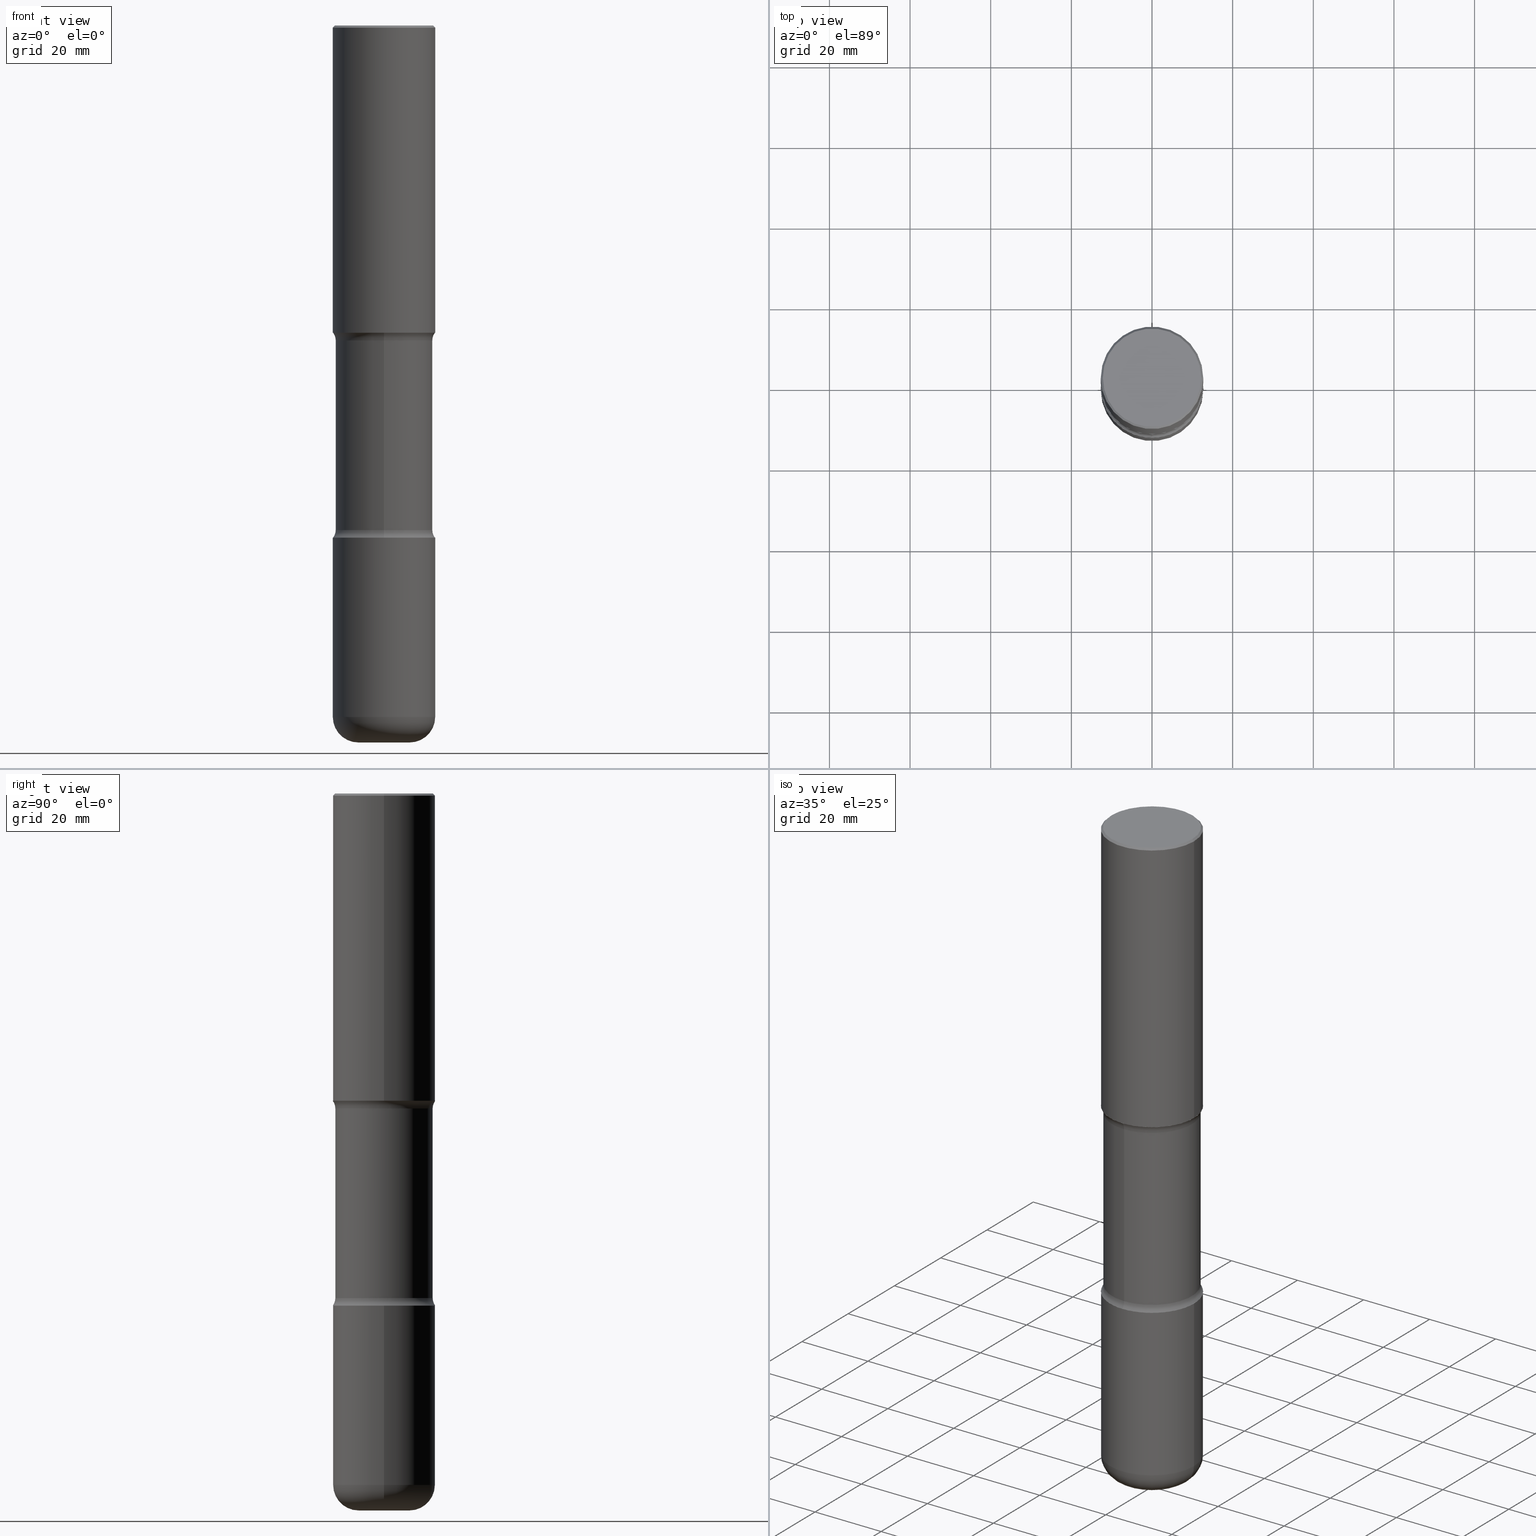
[diagram: canonical four-view strip — front | top / right | iso, engineering-drawing reading convention]
A machine part, canonical four-view strip (front | top / right | iso — engineering-drawing reading convention). The complete STEP part file that produces these views, byte-faithful:
ISO-10303-21;
HEADER;
FILE_DESCRIPTION (( 'STEP AP203' ),
    '1' );
FILE_NAME ('37985.STEP',
    '2024-03-02T02:08:15',
    ( '' ),
    ( '' ),
    'SwSTEP 2.0',
    'SolidWorks 2023',
    '' );
FILE_SCHEMA (( 'CONFIG_CONTROL_DESIGN' ));
ENDSEC;

DATA;
#1 = DIRECTION ( 'NONE',  ( 6.982962677686265133E-15, 1.000000000000000000, -3.419634877618474112E-15 ) ) ;
#2 = AXIS2_PLACEMENT_3D ( 'NONE', #445, #225, #535 ) ;
#3 = PRODUCT ( '37985', '37985', '', ( #203 ) ) ;
#4 = AXIS2_PLACEMENT_3D ( 'NONE', #435, #6, #389 ) ;
#5 = AXIS2_PLACEMENT_3D ( 'NONE', #357, #531, #313 ) ;
#6 = DIRECTION ( 'NONE',  ( -2.445468806185136597E-29, 3.491481338843145583E-15, 1.000000000000000000 ) ) ;
#7 = ADVANCED_FACE ( 'NONE', ( #24 ), #532, .T. ) ;
#8 = EDGE_CURVE ( 'NONE', #158, #272, #187, .T. ) ;
#9 = CARTESIAN_POINT ( 'NONE',  ( 1.711828164329595842E-28, -2.444036937190202499E-14, -7.000000000000001776 ) ) ;
#10 = DIRECTION ( 'NONE',  ( -2.445468806185136597E-29, 3.491481338843145583E-15, 1.000000000000000000 ) ) ;
#11 = AXIS2_PLACEMENT_3D ( 'NONE', #184, #261, #254 ) ;
#12 = CARTESIAN_POINT ( 'NONE',  ( 0.5000000000000002220, -2.094888803305886009E-14, -4.999999999999999112 ) ) ;
#13 = APPROVAL_ROLE ( '' ) ;
#14 = EDGE_CURVE ( 'NONE', #413, #312, #438, .T. ) ;
#15 = EDGE_LOOP ( 'NONE', ( #549, #362, #415, #322 ) ) ;
#16 = DIRECTION ( 'NONE',  ( 1.000000000000000000, -6.982962677686265133E-15, 4.883557194083112340E-29 ) ) ;
#17 = ORIENTED_EDGE ( 'NONE', *, *, #467, .F. ) ;
#18 = ORIENTED_EDGE ( 'NONE', *, *, #86, .F. ) ;
#19 = LINE ( 'NONE', #156, #88 ) ;
#20 = DIRECTION ( 'NONE',  ( 2.495638921910708014E-29, -3.419634877618474112E-15, -1.000000000000000000 ) ) ;
#21 = EDGE_LOOP ( 'NONE', ( #103, #503, #397, #328 ) ) ;
#22 = AXIS2_PLACEMENT_3D ( 'NONE', #478, #434, #311 ) ;
#23 = DIRECTION ( 'NONE',  ( 2.495638921910708014E-29, -3.419634877618474112E-15, -1.000000000000000000 ) ) ;
#24 = FACE_OUTER_BOUND ( 'NONE', #124, .T. ) ;
#25 = EDGE_LOOP ( 'NONE', ( #486, #129, #223, #439 ) ) ;
#26 = APPLICATION_PROTOCOL_DEFINITION ( 'international standard', 'config_control_design', 1994, #63 ) ;
#27 = DIRECTION ( 'NONE',  ( 2.445468806185136597E-29, -3.491481338843145583E-15, -1.000000000000000000 ) ) ;
#28 = EDGE_LOOP ( 'NONE', ( #41, #60, #373, #326 ) ) ;
#29 = DIRECTION ( 'NONE',  ( -1.000000000000000000, 6.982962677686266711E-15, 0.000000000000000000 ) ) ;
#30 = VERTEX_POINT ( 'NONE', #12 ) ;
#31 = TOROIDAL_SURFACE ( 'NONE', #418, 0.2500000000000004996, 0.2500000000000004996 ) ;
#32 = DIRECTION ( 'NONE',  ( 0.000000000000000000, 0.000000000000000000, 1.000000000000000000 ) ) ;
#33 = APPROVAL ( #75, 'UNSPECIFIED' ) ;
#34 = CARTESIAN_POINT ( 'NONE',  ( 1.222734403092568074E-28, -1.745740669421572673E-14, -4.999999999999999112 ) ) ;
#35 = ADVANCED_FACE ( 'NONE', ( #100 ), #193, .F. ) ;
#36 = DIRECTION ( 'NONE',  ( -2.445468806185136597E-29, 3.491481338843145583E-15, 1.000000000000000000 ) ) ;
#37 = CALENDAR_DATE ( 2024, 1, 3 ) ;
#38 = CARTESIAN_POINT ( 'NONE',  ( -3.430248998885697150E-15, -0.5000000000000112133, -2.999999999999997335 ) ) ;
#39 = CIRCLE ( 'NONE', #387, 0.2500000000000004996 ) ;
#40 = DIRECTION ( 'NONE',  ( 6.982962677686265922E-15, 1.000000000000000000, -2.300503573612011028E-15 ) ) ;
#41 = ORIENTED_EDGE ( 'NONE', *, *, #346, .F. ) ;
#42 = APPROVAL ( #255, 'UNSPECIFIED' ) ;
#43 = DIRECTION ( 'NONE',  ( 2.495638921910707734E-29, -3.419634877618474112E-15, -1.000000000000000000 ) ) ;
#44 = DIRECTION ( 'NONE',  ( 6.860497997771531562E-15, 1.000000000000000000, 0.000000000000000000 ) ) ;
#45 = CARTESIAN_POINT ( 'NONE',  ( 1.222734403092568074E-28, -1.745740669421572673E-14, -4.999999999999999112 ) ) ;
#46 = CIRCLE ( 'NONE', #518, 0.2500000000000004996 ) ;
#47 = EDGE_CURVE ( 'NONE', #492, #74, #64, .T. ) ;
#48 = FACE_OUTER_BOUND ( 'NONE', #150, .T. ) ;
#49 = EDGE_CURVE ( 'NONE', #131, #169, #139, .T. ) ;
#50 = CARTESIAN_POINT ( 'NONE',  ( -0.2500000000000004996, -2.133939894544624343E-14, -7.000000000000001776 ) ) ;
#51 = CARTESIAN_POINT ( 'NONE',  ( -4.116298798662799188E-15, -0.6000000000000174083, -4.924999999999996270 ) ) ;
#52 = VERTEX_POINT ( 'NONE', #157 ) ;
#53 = AXIS2_PLACEMENT_3D ( 'NONE', #455, #69, #271 ) ;
#54 = ORGANIZATION ( 'UNSPECIFIED', 'UNSPECIFIED', '' ) ;
#55 = CYLINDRICAL_SURFACE ( 'NONE', #371, 0.5000000000000001110 ) ;
#56 = EDGE_LOOP ( 'NONE', ( #546, #456 ) ) ;
#57 = ORIENTED_EDGE ( 'NONE', *, *, #428, .F. ) ;
#58 = DIRECTION ( 'NONE',  ( -2.445468806185136597E-29, 3.491481338843145583E-15, 1.000000000000000000 ) ) ;
#59 = DIRECTION ( 'NONE',  ( 1.000000000000000000, -6.982962677686265922E-15, 4.876176775795935793E-29 ) ) ;
#60 = ORIENTED_EDGE ( 'NONE', *, *, #507, .T. ) ;
#61 = DIRECTION ( 'NONE',  ( 6.860497997771532351E-15, 1.000000000000000000, 0.000000000000000000 ) ) ;
#62 = ORIENTED_EDGE ( 'NONE', *, *, #121, .F. ) ;
#63 = APPLICATION_CONTEXT ( 'configuration controlled 3d designs of mechanical parts and assemblies' ) ;
#64 = CIRCLE ( 'NONE', #78, 0.1250000000000002498 ) ;
#65 = VECTOR ( 'NONE', #419, 39.37007874015748143 ) ;
#66 = VERTEX_POINT ( 'NONE', #113 ) ;
#67 = CIRCLE ( 'NONE', #513, 0.5000000000000002220 ) ;
#68 = FACE_OUTER_BOUND ( 'NONE', #15, .T. ) ;
#69 = DIRECTION ( 'NONE',  ( 2.445468806185136597E-29, -3.491481338843145583E-15, -1.000000000000000000 ) ) ;
#70 = VERTEX_POINT ( 'NONE', #320 ) ;
#71 = APPROVAL_STATUS ( 'not_yet_approved' ) ;
#72 = ADVANCED_FACE ( 'NONE', ( #196 ), #278, .T. ) ;
#73 = DIRECTION ( 'NONE',  ( 6.982962677686266711E-15, 1.000000000000000000, -4.370956789862819572E-15 ) ) ;
#74 = VERTEX_POINT ( 'NONE', #449 ) ;
#75 = APPROVAL_STATUS ( 'not_yet_approved' ) ;
#76 = LINE ( 'NONE', #425, #393 ) ;
#77 = ORIENTED_EDGE ( 'NONE', *, *, #8, .F. ) ;
#78 = AXIS2_PLACEMENT_3D ( 'NONE', #442, #228, #358 ) ;
#79 = CIRCLE ( 'NONE', #554, 0.5000000000000002220 ) ;
#80 = AXIS2_PLACEMENT_3D ( 'NONE', #51, #491, #61 ) ;
#81 = CARTESIAN_POINT ( 'NONE',  ( -0.5000000000000002220, -1.695973918690297853E-14, -4.999999999999999112 ) ) ;
#82 = CALENDAR_DATE ( 2024, 1, 3 ) ;
#83 = DIRECTION ( 'NONE',  ( 2.495638921910708014E-29, -3.419634877618474112E-15, -1.000000000000000000 ) ) ;
#84 = MANIFOLD_SOLID_BREP ( 'Body-Move/Copy2[2]', #257 ) ;
#85 = CARTESIAN_POINT ( 'NONE',  ( 1.711828164329595842E-28, -2.444036937190202499E-14, -7.000000000000001776 ) ) ;
#86 = EDGE_CURVE ( 'NONE', #272, #158, #250, .T. ) ;
#87 = AXIS2_PLACEMENT_3D ( 'NONE', #477, #91, #1 ) ;
#88 = VECTOR ( 'NONE', #319, 39.37007874015748143 ) ;
#89 = CARTESIAN_POINT ( 'NONE',  ( 0.4999999999999999445, -3.500078625662628685E-15, -0.02000000000000013572 ) ) ;
#90 = EDGE_LOOP ( 'NONE', ( #500, #482, #233, #323 ) ) ;
#91 = DIRECTION ( 'NONE',  ( 2.495638921910708014E-29, -3.419634877618474112E-15, -1.000000000000000000 ) ) ;
#92 = DIRECTION ( 'NONE',  ( 6.982962677686265922E-15, 1.000000000000000000, -3.419634877618474112E-15 ) ) ;
#93 = ADVANCED_FACE ( 'NONE', ( #408 ), #269, .T. ) ;
#94 = DIRECTION ( 'NONE',  ( -6.982962677686266711E-15, -1.000000000000000000, 3.491481338843145583E-15 ) ) ;
#95 = AXIS2_PLACEMENT_3D ( 'NONE', #97, #399, #534 ) ;
#96 = APPLICATION_CONTEXT ( 'configuration controlled 3d designs of mechanical parts and assemblies' ) ;
#97 = CARTESIAN_POINT ( 'NONE',  ( -0.2500000000000004996, -2.179114219779098172E-14, -6.750000000000000888 ) ) ;
#98 = ADVANCED_FACE ( 'NONE', ( #236 ), #181, .T. ) ;
#99 = FACE_OUTER_BOUND ( 'NONE', #400, .T. ) ;
#100 = FACE_OUTER_BOUND ( 'NONE', #120, .T. ) ;
#101 = PRODUCT_DEFINITION ( 'UNKNOWN', '', #544, #179 ) ;
#102 = DIRECTION ( 'NONE',  ( -6.982962677686264344E-15, -1.000000000000000000, 0.000000000000000000 ) ) ;
#103 = ORIENTED_EDGE ( 'NONE', *, *, #428, .T. ) ;
#104 = CIRCLE ( 'NONE', #462, 0.1250000000000001110 ) ;
#105 = LOCAL_TIME ( 21, 8, 15.00000000000000000, #501 ) ;
#106 = DIRECTION ( 'NONE',  ( -2.445468806185136877E-29, 3.491481338843145188E-15, 1.000000000000000000 ) ) ;
#107 = DIRECTION ( 'NONE',  ( 2.438088387897960049E-29, -3.491481338843145188E-15, -1.000000000000000000 ) ) ;
#108 = EDGE_CURVE ( 'NONE', #165, #492, #309, .T. ) ;
#109 = DIRECTION ( 'NONE',  ( -1.000000000000000000, 6.982962677686265922E-15, -4.883557194083112340E-29 ) ) ;
#110 = DIRECTION ( 'NONE',  ( -2.445468806185136597E-29, 3.491481338843145583E-15, 1.000000000000000000 ) ) ;
#111 = ORIENTED_EDGE ( 'NONE', *, *, #195, .T. ) ;
#112 = LINE ( 'NONE', #448, #176 ) ;
#113 = CARTESIAN_POINT ( 'NONE',  ( -0.4799999999999998157, 3.386736898677838408E-15, 1.707404996037808406E-17 ) ) ;
#114 = AXIS2_PLACEMENT_3D ( 'NONE', #249, #135, #183 ) ;
#115 = VERTEX_POINT ( 'NONE', #81 ) ;
#116 = CARTESIAN_POINT ( 'NONE',  ( 3.316907271901051235E-15, 0.4749999999999892641, -3.075000000000001510 ) ) ;
#117 = ORIENTED_EDGE ( 'NONE', *, *, #8, .T. ) ;
#118 = DATE_AND_TIME ( #82, #105 ) ;
#119 = DIRECTION ( 'NONE',  ( 1.000000000000000000, -6.982962677686267499E-15, 0.000000000000000000 ) ) ;
#120 = EDGE_LOOP ( 'NONE', ( #331, #197 ) ) ;
#121 = EDGE_CURVE ( 'NONE', #492, #165, #511, .T. ) ;
#122 = PERSON_AND_ORGANIZATION ( #523, #54 ) ;
#123 = CARTESIAN_POINT ( 'NONE',  ( -0.5000000000000007772, -2.001478535839073126E-14, -6.750000000000000888 ) ) ;
#124 = EDGE_LOOP ( 'NONE', ( #57, #218 ) ) ;
#125 = VECTOR ( 'NONE', #522, 39.37007874015748143 ) ;
#126 = PERSON_AND_ORGANIZATION ( #523, #54 ) ;
#127 = CC_DESIGN_APPROVAL ( #42, ( #420 ) ) ;
#128 = DIRECTION ( 'NONE',  ( 2.495638921910708014E-29, -3.419634877618474112E-15, -1.000000000000000000 ) ) ;
#129 = ORIENTED_EDGE ( 'NONE', *, *, #411, .T. ) ;
#130 = FACE_OUTER_BOUND ( 'NONE', #222, .T. ) ;
#131 = VERTEX_POINT ( 'NONE', #242 ) ;
#132 = DIRECTION ( 'NONE',  ( -1.000000000000000000, 6.982962677686265922E-15, -4.876176775795935793E-29 ) ) ;
#133 = VECTOR ( 'NONE', #347, 39.37007874015748143 ) ;
#134 = CIRCLE ( 'NONE', #154, 0.5000000000000005551 ) ;
#135 = DIRECTION ( 'NONE',  ( 2.495638921910708014E-29, -3.419634877618474112E-15, -1.000000000000000000 ) ) ;
#136 = EDGE_CURVE ( 'NONE', #74, #409, #164, .T. ) ;
#137 = DIRECTION ( 'NONE',  ( 2.438088387897960049E-29, -3.491481338843145188E-15, -1.000000000000000000 ) ) ;
#138 = CARTESIAN_POINT ( 'NONE',  ( 0.4799999999999998157, -3.396558832296481310E-15, 1.707404996042524007E-17 ) ) ;
#139 = CIRCLE ( 'NONE', #386, 0.5000000000000004441 ) ;
#140 = FACE_OUTER_BOUND ( 'NONE', #552, .T. ) ;
#141 = TOROIDAL_SURFACE ( 'NONE', #114, 0.6000000000000001998, 0.1250000000000002498 ) ;
#142 = AXIS2_PLACEMENT_3D ( 'NONE', #402, #109, #102 ) ;
#143 = COORDINATED_UNIVERSAL_TIME_OFFSET ( 5, 0, .BEHIND. ) ;
#144 = ADVANCED_FACE ( 'NONE', ( #244 ), #258, .F. ) ;
#145 = CARTESIAN_POINT ( 'NONE',  ( 1.222734403092568074E-28, -1.745740669421572673E-14, -4.999999999999999112 ) ) ;
#146 = CC_DESIGN_PERSON_AND_ORGANIZATION_ASSIGNMENT ( #170, #333, ( #544 ) ) ;
#147 = ORIENTED_EDGE ( 'NONE', *, *, #108, .F. ) ;
#148 = CARTESIAN_POINT ( 'NONE',  ( 1.650691444174967427E-28, -2.356749903719123535E-14, -6.750000000000000888 ) ) ;
#149 = DIRECTION ( 'NONE',  ( -2.438088387897960049E-29, 3.491481338843145188E-15, 1.000000000000000000 ) ) ;
#150 = EDGE_LOOP ( 'NONE', ( #111, #237, #367, #201 ) ) ;
#151 = DIRECTION ( 'NONE',  ( 1.000000000000000000, -6.982962677686263555E-15, 0.000000000000000000 ) ) ;
#152 = ORIENTED_EDGE ( 'NONE', *, *, #47, .F. ) ;
#153 = CIRCLE ( 'NONE', #352, 0.4999999999999999445 ) ;
#154 = AXIS2_PLACEMENT_3D ( 'NONE', #148, #58, #494 ) ;
#155 = CC_DESIGN_DATE_AND_TIME_ASSIGNMENT ( #553, #368, ( #420 ) ) ;
#156 = CARTESIAN_POINT ( 'NONE',  ( 0.5000000000000001110, -3.491481338843134539E-15, 2.438088387897968457E-29 ) ) ;
#157 = CARTESIAN_POINT ( 'NONE',  ( -0.4999999999999999445, 3.421651712066269663E-15, -0.02000000000000013572 ) ) ;
#158 = VERTEX_POINT ( 'NONE', #116 ) ;
#159 = CARTESIAN_POINT ( 'NONE',  ( -0.5000000000000002220, -1.719423142852643572E-15, -2.999999999999999112 ) ) ;
#160 = ADVANCED_FACE ( 'NONE', ( #171 ), #422, .F. ) ;
#161 = ORIENTED_EDGE ( 'NONE', *, *, #234, .T. ) ;
#162 = APPROVAL_ROLE ( '' ) ;
#163 = ORIENTED_EDGE ( 'NONE', *, *, #185, .T. ) ;
#164 = CIRCLE ( 'NONE', #325, 0.4749999999999999778 ) ;
#165 = VERTEX_POINT ( 'NONE', #329 ) ;
#166 = LOCAL_TIME ( 21, 8, 15.00000000000000000, #374 ) ;
#167 = PERSON_AND_ORGANIZATION ( #523, #54 ) ;
#168 = LINE ( 'NONE', #337, #65 ) ;
#169 = VERTEX_POINT ( 'NONE', #38 ) ;
#170 = PERSON_AND_ORGANIZATION ( #523, #54 ) ;
#171 = FACE_OUTER_BOUND ( 'NONE', #275, .T. ) ;
#172 = ORIENTED_EDGE ( 'NONE', *, *, #314, .T. ) ;
#173 = CARTESIAN_POINT ( 'NONE',  ( 7.336406418555407548E-29, -1.047444401652943320E-14, -2.999999999999999112 ) ) ;
#174 = ORIENTED_EDGE ( 'NONE', *, *, #467, .T. ) ;
#175 = AXIS2_PLACEMENT_3D ( 'NONE', #441, #359, #437 ) ;
#176 = VECTOR ( 'NONE', #106, 39.37007874015748143 ) ;
#177 = DIRECTION ( 'NONE',  ( -0.7071067811865471286, 2.468850131082252722E-15, -0.7071067811865479058 ) ) ;
#178 = DIRECTION ( 'NONE',  ( -2.445468806185136597E-29, 3.491481338843145583E-15, 1.000000000000000000 ) ) ;
#179 = DESIGN_CONTEXT ( 'detailed design', #96, 'design' ) ;
#180 = DIRECTION ( 'NONE',  ( 1.000000000000000000, -6.982962677686265133E-15, 4.883557194083112340E-29 ) ) ;
#181 = CONICAL_SURFACE ( 'NONE', #215, 0.4999999999999999445, 0.7853981633974477239 ) ;
#182 = LOCAL_TIME ( 21, 8, 15.00000000000000000, #466 ) ;
#183 = DIRECTION ( 'NONE',  ( 6.982962677686265133E-15, 1.000000000000000000, -3.419634877618474112E-15 ) ) ;
#184 = CARTESIAN_POINT ( 'NONE',  ( -4.175405657340879278E-46, 5.961372681521788801E-32, 1.707404996040164512E-17 ) ) ;
#185 = EDGE_CURVE ( 'NONE', #158, #74, #76, .T. ) ;
#186 = FACE_OUTER_BOUND ( 'NONE', #21, .T. ) ;
#187 = CIRCLE ( 'NONE', #2, 0.4750000000000001443 ) ;
#188 = CARTESIAN_POINT ( 'NONE',  ( 1.650691444174967427E-28, -2.356749903719123535E-14, -6.750000000000000888 ) ) ;
#189 = TOROIDAL_SURFACE ( 'NONE', #87, 0.5999999999999999778, 0.1250000000000001110 ) ;
#190 = ORIENTED_EDGE ( 'NONE', *, *, #332, .F. ) ;
#191 = ORIENTED_EDGE ( 'NONE', *, *, #354, .F. ) ;
#192 = DIRECTION ( 'NONE',  ( 6.982962677686265133E-15, 1.000000000000000000, -3.419634877618474112E-15 ) ) ;
#193 = PLANE ( 'NONE',  #496 ) ;
#194 = ORIENTED_EDGE ( 'NONE', *, *, #49, .F. ) ;
#195 = EDGE_CURVE ( 'NONE', #70, #205, #369, .T. ) ;
#196 = FACE_OUTER_BOUND ( 'NONE', #28, .T. ) ;
#197 = ORIENTED_EDGE ( 'NONE', *, *, #475, .F. ) ;
#198 = CALENDAR_DATE ( 2024, 1, 3 ) ;
#199 = CARTESIAN_POINT ( 'NONE',  ( 7.424434616114947917E-29, -1.087289751662588659E-14, -3.075000000000000178 ) ) ;
#200 = AXIS2_PLACEMENT_3D ( 'NONE', #392, #94, #217 ) ;
#201 = ORIENTED_EDGE ( 'NONE', *, *, #510, .F. ) ;
#202 = TOROIDAL_SURFACE ( 'NONE', #221, 0.6000000000000001998, 0.1250000000000002498 ) ;
#203 = MECHANICAL_CONTEXT ( 'NONE', #63, 'mechanical' ) ;
#204 = CARTESIAN_POINT ( 'NONE',  ( 1.204017111178237438E-28, -1.720093407839433761E-14, -4.924999999999998046 ) ) ;
#205 = VERTEX_POINT ( 'NONE', #123 ) ;
#206 = EDGE_CURVE ( 'NONE', #272, #409, #168, .T. ) ;
#207 = ORIENTED_EDGE ( 'NONE', *, *, #283, .F. ) ;
#208 = ADVANCED_FACE ( 'NONE', ( #287 ), #293, .T. ) ;
#209 = CARTESIAN_POINT ( 'NONE',  ( 4.890937612370306439E-31, -6.982962677686338448E-17, -0.02000000000000013572 ) ) ;
#210 = ORIENTED_EDGE ( 'NONE', *, *, #253, .T. ) ;
#211 = CIRCLE ( 'NONE', #4, 0.4799999999999998157 ) ;
#212 = APPROVAL_PERSON_ORGANIZATION ( #122, #436, #162 ) ;
#213 = DIRECTION ( 'NONE',  ( -1.000000000000000000, 6.982962677686265922E-15, -4.876176775795935793E-29 ) ) ;
#214 = CARTESIAN_POINT ( 'NONE',  ( 0.2500000000000004996, -2.618611004132359483E-14, -7.000000000000001776 ) ) ;
#215 = AXIS2_PLACEMENT_3D ( 'NONE', #412, #27, #29 ) ;
#216 = LINE ( 'NONE', #304, #133 ) ;
#217 = DIRECTION ( 'NONE',  ( 1.000000000000000000, -6.982962677686264344E-15, 0.000000000000000000 ) ) ;
#218 = ORIENTED_EDGE ( 'NONE', *, *, #252, .F. ) ;
#219 = FACE_OUTER_BOUND ( 'NONE', #25, .T. ) ;
#220 = AXIS2_PLACEMENT_3D ( 'NONE', #209, #502, #512 ) ;
#221 = AXIS2_PLACEMENT_3D ( 'NONE', #315, #23, #192 ) ;
#222 = EDGE_LOOP ( 'NONE', ( #117, #285, #245, #542 ) ) ;
#223 = ORIENTED_EDGE ( 'NONE', *, *, #234, .F. ) ;
#224 = CARTESIAN_POINT ( 'NONE',  ( 0.5000000000000002220, -1.396592535537256813E-14, -2.999999999999999112 ) ) ;
#225 = DIRECTION ( 'NONE',  ( 2.495638921910708014E-29, -3.419634877618474112E-15, -1.000000000000000000 ) ) ;
#226 = EDGE_CURVE ( 'NONE', #506, #461, #79, .T. ) ;
#227 = DIRECTION ( 'NONE',  ( -2.445468806185136597E-29, 3.491481338843145583E-15, 1.000000000000000000 ) ) ;
#228 = DIRECTION ( 'NONE',  ( -1.000000000000000000, 6.982962677686265922E-15, -4.883557194083112340E-29 ) ) ;
#229 =( LENGTH_UNIT ( ) NAMED_UNIT ( * ) SI_UNIT ( $, .METRE. ) );
#230 = ORIENTED_EDGE ( 'NONE', *, *, #473, .T. ) ;
#231 = VECTOR ( 'NONE', #177, 39.37007874015748143 ) ;
#232 = CIRCLE ( 'NONE', #301, 0.5000000000000002220 ) ;
#233 = ORIENTED_EDGE ( 'NONE', *, *, #423, .T. ) ;
#234 = EDGE_CURVE ( 'NONE', #312, #52, #282, .T. ) ;
#235 = DIRECTION ( 'NONE',  ( 1.000000000000000000, -6.982962677686267499E-15, 4.876176775795935793E-29 ) ) ;
#236 = FACE_OUTER_BOUND ( 'NONE', #450, .T. ) ;
#237 = ORIENTED_EDGE ( 'NONE', *, *, #346, .T. ) ;
#238 = COORDINATED_UNIVERSAL_TIME_OFFSET ( 5, 0, .BEHIND. ) ;
#239 = CARTESIAN_POINT ( 'NONE',  ( 1.222734403092568074E-28, -1.745740669421572673E-14, -4.999999999999999112 ) ) ;
#240 = ORIENTED_EDGE ( 'NONE', *, *, #108, .T. ) ;
#241 =( NAMED_UNIT ( * ) SI_UNIT ( $, .STERADIAN. ) SOLID_ANGLE_UNIT ( ) );
#242 = CARTESIAN_POINT ( 'NONE',  ( 3.491481338843209480E-15, 0.4999999999999900080, -3.000000000000000888 ) ) ;
#243 = CC_DESIGN_PERSON_AND_ORGANIZATION_ASSIGNMENT ( #504, #295, ( #420 ) ) ;
#244 = FACE_OUTER_BOUND ( 'NONE', #465, .T. ) ;
#245 = ORIENTED_EDGE ( 'NONE', *, *, #136, .F. ) ;
#246 = SECURITY_CLASSIFICATION_LEVEL ( 'unclassified' ) ;
#247 = LINE ( 'NONE', #557, #231 ) ;
#248 = DIRECTION ( 'NONE',  ( 1.000000000000000000, 0.000000000000000000, 0.000000000000000000 ) ) ;
#249 = CARTESIAN_POINT ( 'NONE',  ( 1.204393387046179415E-28, -1.719554559380248700E-14, -4.924999999999998046 ) ) ;
#250 = CIRCLE ( 'NONE', #472, 0.4750000000000001443 ) ;
#251 = CIRCLE ( 'NONE', #11, 0.4799999999999998157 ) ;
#252 = EDGE_CURVE ( 'NONE', #318, #351, #39, .T. ) ;
#253 = EDGE_CURVE ( 'NONE', #52, #312, #153, .T. ) ;
#254 = DIRECTION ( 'NONE',  ( 1.000000000000000000, -6.982962677686266711E-15, 4.876431871984415397E-29 ) ) ;
#255 = APPROVAL_STATUS ( 'not_yet_approved' ) ;
#256 = CYLINDRICAL_SURFACE ( 'NONE', #343, 0.5000000000000004441 ) ;
#257 = CLOSED_SHELL ( 'NONE', ( #414, #93, #98, #160, #35, #484 ) ) ;
#258 = TOROIDAL_SURFACE ( 'NONE', #533, 0.5999999999999999778, 0.1250000000000001110 ) ;
#259 = MANIFOLD_SOLID_BREP ( 'Body-Move/Copy2[4]', #509 ) ;
#260 = CC_DESIGN_APPROVAL ( #33, ( #544 ) ) ;
#261 = DIRECTION ( 'NONE',  ( -2.445468806185136597E-29, 3.491481338843145583E-15, 1.000000000000000000 ) ) ;
#262 = CC_DESIGN_PERSON_AND_ORGANIZATION_ASSIGNMENT ( #126, #547, ( #544 ) ) ;
#263 = CARTESIAN_POINT ( 'NONE',  ( 7.336406418555407548E-29, -1.047444401652943320E-14, -2.999999999999999112 ) ) ;
#264 = FACE_OUTER_BOUND ( 'NONE', #443, .T. ) ;
#265 = CARTESIAN_POINT ( 'NONE',  ( -4.697839742842598686E-28, -1.162304619590211429E-13, -7.000000000000000888 ) ) ;
#266 = ORIENTED_EDGE ( 'NONE', *, *, #332, .T. ) ;
#267 = AXIS2_PLACEMENT_3D ( 'NONE', #265, #107, #274 ) ;
#268 = DIRECTION ( 'NONE',  ( -2.445468806185136597E-29, 3.491481338843145583E-15, 1.000000000000000000 ) ) ;
#269 = CONICAL_SURFACE ( 'NONE', #53, 0.4999999999999999445, 0.7853981633974477239 ) ;
#270 = APPROVAL_PERSON_ORGANIZATION ( #289, #33, #457 ) ;
#271 = DIRECTION ( 'NONE',  ( -1.000000000000000000, 6.982962677686266711E-15, 0.000000000000000000 ) ) ;
#272 = VERTEX_POINT ( 'NONE', #426 ) ;
#273 = CARTESIAN_POINT ( 'NONE',  ( 7.336406418555407548E-29, -1.047444401652943320E-14, -2.999999999999999112 ) ) ;
#274 = DIRECTION ( 'NONE',  ( -1.000000000000000000, 6.982962677686265922E-15, -4.876176775795935793E-29 ) ) ;
#275 = EDGE_LOOP ( 'NONE', ( #266, #172 ) ) ;
#276 = ADVANCED_BREP_SHAPE_REPRESENTATION ( '37985', ( #454, #84, #259, #480 ), #344 ) ;
#277 = DIRECTION ( 'NONE',  ( -2.445468806185136597E-29, 3.491481338843145583E-15, 1.000000000000000000 ) ) ;
#278 = CYLINDRICAL_SURFACE ( 'NONE', #451, 0.5000000000000004441 ) ;
#279 = EDGE_CURVE ( 'NONE', #115, #30, #308, .T. ) ;
#280 = ORIENTED_EDGE ( 'NONE', *, *, #314, .F. ) ;
#281 = LENGTH_MEASURE_WITH_UNIT ( LENGTH_MEASURE( 0.02539999999999999897 ), #229 );
#282 = CIRCLE ( 'NONE', #220, 0.4999999999999999445 ) ;
#283 = EDGE_CURVE ( 'NONE', #66, #52, #247, .T. ) ;
#284 = DIRECTION ( 'NONE',  ( 6.982962677686265133E-15, 1.000000000000000000, -3.450755360418015555E-15 ) ) ;
#285 = ORIENTED_EDGE ( 'NONE', *, *, #206, .T. ) ;
#286 = CALENDAR_DATE ( 2024, 1, 3 ) ;
#287 = FACE_OUTER_BOUND ( 'NONE', #398, .T. ) ;
#288 = EDGE_LOOP ( 'NONE', ( #194, #17 ) ) ;
#289 = PERSON_AND_ORGANIZATION ( #523, #54 ) ;
#290 = DIRECTION ( 'NONE',  ( 6.982962677686266711E-15, 1.000000000000000000, -4.370956789862819572E-15 ) ) ;
#291 = ORIENTED_EDGE ( 'NONE', *, *, #556, .T. ) ;
#292 = DATE_TIME_ROLE ( 'creation_date' ) ;
#293 = CYLINDRICAL_SURFACE ( 'NONE', #479, 0.4750000000000000333 ) ;
#294 = CIRCLE ( 'NONE', #200, 0.2500000000000004996 ) ;
#295 = PERSON_AND_ORGANIZATION_ROLE ( 'classification_officer' ) ;
#296 = CARTESIAN_POINT ( 'NONE',  ( 1.222734403092568074E-28, -1.745740669421572673E-14, -4.999999999999999112 ) ) ;
#297 = DIRECTION ( 'NONE',  ( 2.495638921910708014E-29, -3.419634877618474112E-15, -1.000000000000000000 ) ) ;
#298 = ADVANCED_FACE ( 'NONE', ( #340 ), #141, .F. ) ;
#299 = CARTESIAN_POINT ( 'NONE',  ( 1.650691444174967427E-28, -2.356749903719123535E-14, -6.750000000000000888 ) ) ;
#300 = AXIS2_PLACEMENT_3D ( 'NONE', #263, #43, #92 ) ;
#301 = AXIS2_PLACEMENT_3D ( 'NONE', #145, #485, #151 ) ;
#302 = DIRECTION ( 'NONE',  ( 2.495638921910708014E-29, -3.419634877618474112E-15, -1.000000000000000000 ) ) ;
#303 = PLANE ( 'NONE',  #300 ) ;
#304 = CARTESIAN_POINT ( 'NONE',  ( -0.5000000000000001110, 3.552713678800501718E-15, -2.459467545127453732E-29 ) ) ;
#305 = ADVANCED_FACE ( 'NONE', ( #130 ), #349, .T. ) ;
#306 = SHAPE_DEFINITION_REPRESENTATION ( #476, #276 ) ;
#307 = VECTOR ( 'NONE', #364, 39.37007874015748143 ) ;
#308 = CIRCLE ( 'NONE', #433, 0.5000000000000002220 ) ;
#309 = CIRCLE ( 'NONE', #487, 0.5000000000000002220 ) ;
#310 = LOCAL_TIME ( 21, 8, 15.00000000000000000, #143 ) ;
#311 = DIRECTION ( 'NONE',  ( 1.000000000000000000, -6.982962677686267499E-15, 4.876176775795935793E-29 ) ) ;
#312 = VERTEX_POINT ( 'NONE', #89 ) ;
#313 = DIRECTION ( 'NONE',  ( -6.982962677686265922E-15, -1.000000000000000000, 3.419634877618474112E-15 ) ) ;
#314 = EDGE_CURVE ( 'NONE', #413, #66, #211, .T. ) ;
#315 = CARTESIAN_POINT ( 'NONE',  ( 1.204393387046179415E-28, -1.719554559380248700E-14, -4.924999999999998046 ) ) ;
#316 = DIRECTION ( 'NONE',  ( 2.495638921910708014E-29, -3.419634877618474112E-15, -1.000000000000000000 ) ) ;
#317 = DIRECTION ( 'NONE',  ( 2.495638921910708014E-29, -3.419634877618474112E-15, -1.000000000000000000 ) ) ;
#318 = VERTEX_POINT ( 'NONE', #50 ) ;
#319 = DIRECTION ( 'NONE',  ( -2.445468806185136877E-29, 3.491481338843145188E-15, 1.000000000000000000 ) ) ;
#320 = CARTESIAN_POINT ( 'NONE',  ( 0.5000000000000007772, -2.705898037603436870E-14, -6.750000000000000888 ) ) ;
#321 = DIRECTION ( 'NONE',  ( 1.000000000000000000, -6.982962677686267499E-15, 0.000000000000000000 ) ) ;
#322 = ORIENTED_EDGE ( 'NONE', *, *, #253, .F. ) ;
#323 = ORIENTED_EDGE ( 'NONE', *, *, #507, .F. ) ;
#324 = PERSON_AND_ORGANIZATION ( #523, #54 ) ;
#325 = AXIS2_PLACEMENT_3D ( 'NONE', #204, #382, #376 ) ;
#326 = ORIENTED_EDGE ( 'NONE', *, *, #279, .F. ) ;
#327 = TOROIDAL_SURFACE ( 'NONE', #388, 0.2500000000000004996, 0.2500000000000004996 ) ;
#328 = ORIENTED_EDGE ( 'NONE', *, *, #423, .F. ) ;
#329 = CARTESIAN_POINT ( 'NONE',  ( -3.430248998885645480E-15, -0.5000000000000177636, -4.999999999999997335 ) ) ;
#330 = ADVANCED_FACE ( 'NONE', ( #140 ), #189, .F. ) ;
#331 = ORIENTED_EDGE ( 'NONE', *, *, #226, .F. ) ;
#332 = EDGE_CURVE ( 'NONE', #66, #413, #251, .T. ) ;
#333 = PERSON_AND_ORGANIZATION_ROLE ( 'design_supplier' ) ;
#334 = DIRECTION ( 'NONE',  ( 2.495638921910708014E-29, -3.419634877618474112E-15, -1.000000000000000000 ) ) ;
#335 = ORIENTED_EDGE ( 'NONE', *, *, #136, .T. ) ;
#336 = CARTESIAN_POINT ( 'NONE',  ( 0.000000000000000000, 0.000000000000000000, 0.000000000000000000 ) ) ;
#337 = CARTESIAN_POINT ( 'NONE',  ( -3.258736548941304889E-15, -0.4750000000000243472, -6.999999999999997335 ) ) ;
#338 = CIRCLE ( 'NONE', #95, 0.2500000000000004996 ) ;
#339 = ORIENTED_EDGE ( 'NONE', *, *, #283, .T. ) ;
#340 = FACE_OUTER_BOUND ( 'NONE', #401, .T. ) ;
#341 = CYLINDRICAL_SURFACE ( 'NONE', #22, 0.5000000000000001110 ) ;
#342 = CARTESIAN_POINT ( 'NONE',  ( 1.721862187474709565E-28, -2.429667644945267101E-14, -6.999999999999998224 ) ) ;
#343 = AXIS2_PLACEMENT_3D ( 'NONE', #560, #481, #390 ) ;
#344 =( GEOMETRIC_REPRESENTATION_CONTEXT ( 3 ) GLOBAL_UNCERTAINTY_ASSIGNED_CONTEXT ( ( #383 ) ) GLOBAL_UNIT_ASSIGNED_CONTEXT ( ( #483, #353, #241 ) ) REPRESENTATION_CONTEXT ( 'NONE', 'WORKASPACE' ) );
#345 = PLANE ( 'NONE',  #543 ) ;
#346 = EDGE_CURVE ( 'NONE', #205, #115, #515, .T. ) ;
#347 = DIRECTION ( 'NONE',  ( -2.445468806185136877E-29, 3.491481338843145188E-15, 1.000000000000000000 ) ) ;
#348 = ORIENTED_EDGE ( 'NONE', *, *, #519, .T. ) ;
#349 = CYLINDRICAL_SURFACE ( 'NONE', #555, 0.4750000000000000333 ) ;
#350 = CALENDAR_DATE ( 2024, 1, 3 ) ;
#351 = VERTEX_POINT ( 'NONE', #214 ) ;
#352 = AXIS2_PLACEMENT_3D ( 'NONE', #559, #36, #551 ) ;
#353 =( NAMED_UNIT ( * ) PLANE_ANGLE_UNIT ( ) SI_UNIT ( $, .RADIAN. ) );
#354 = EDGE_CURVE ( 'NONE', #272, #169, #104, .T. ) ;
#355 = ORIENTED_EDGE ( 'NONE', *, *, #354, .T. ) ;
#356 = ORIENTED_EDGE ( 'NONE', *, *, #556, .F. ) ;
#357 = CARTESIAN_POINT ( 'NONE',  ( 1.222734403092568074E-28, -1.745740669421572673E-14, -4.999999999999999112 ) ) ;
#358 = DIRECTION ( 'NONE',  ( -6.982962677686264344E-15, -1.000000000000000000, 0.000000000000000000 ) ) ;
#359 = DIRECTION ( 'NONE',  ( 2.495638921910708014E-29, -3.419634877618474112E-15, -1.000000000000000000 ) ) ;
#360 = AXIS2_PLACEMENT_3D ( 'NONE', #460, #505, #213 ) ;
#361 = CARTESIAN_POINT ( 'NONE',  ( 0.4999999999999999445, -3.500078625662628685E-15, -0.02000000000000013572 ) ) ;
#362 = ORIENTED_EDGE ( 'NONE', *, *, #475, .T. ) ;
#363 = CC_DESIGN_PERSON_AND_ORGANIZATION_ASSIGNMENT ( #324, #508, ( #101 ) ) ;
#364 = DIRECTION ( 'NONE',  ( 0.7071067811865471286, -7.319954787623254468E-15, -0.7071067811865479058 ) ) ;
#365 = CARTESIAN_POINT ( 'NONE',  ( 0.000000000000000000, 0.000000000000000000, 0.000000000000000000 ) ) ;
#366 = ADVANCED_FACE ( 'NONE', ( #431 ), #345, .F. ) ;
#367 = ORIENTED_EDGE ( 'NONE', *, *, #539, .F. ) ;
#368 = DATE_TIME_ROLE ( 'classification_date' ) ;
#369 = CIRCLE ( 'NONE', #497, 0.5000000000000005551 ) ;
#370 = CARTESIAN_POINT ( 'NONE',  ( 1.650691444174967427E-28, -2.356749903719123535E-14, -6.750000000000000888 ) ) ;
#371 = AXIS2_PLACEMENT_3D ( 'NONE', #444, #227, #235 ) ;
#372 = ADVANCED_FACE ( 'NONE', ( #471 ), #303, .F. ) ;
#373 = ORIENTED_EDGE ( 'NONE', *, *, #510, .T. ) ;
#374 = COORDINATED_UNIVERSAL_TIME_OFFSET ( 5, 0, .BEHIND. ) ;
#375 = ADVANCED_FACE ( 'NONE', ( #48 ), #256, .T. ) ;
#376 = DIRECTION ( 'NONE',  ( 6.982962677686265133E-15, 1.000000000000000000, -2.300503573612011422E-15 ) ) ;
#377 = DIRECTION ( 'NONE',  ( -2.445468806185136597E-29, 3.491481338843145583E-15, 1.000000000000000000 ) ) ;
#378 = ORIENTED_EDGE ( 'NONE', *, *, #473, .F. ) ;
#379 = PERSON_AND_ORGANIZATION_ROLE ( 'design_owner' ) ;
#380 = DIRECTION ( 'NONE',  ( -2.445468806185136597E-29, 3.491481338843145583E-15, 1.000000000000000000 ) ) ;
#381 = AXIS2_PLACEMENT_3D ( 'NONE', #239, #297, #290 ) ;
#382 = DIRECTION ( 'NONE',  ( 2.495638921910708014E-29, -3.419634877618474112E-15, -1.000000000000000000 ) ) ;
#383 = UNCERTAINTY_MEASURE_WITH_UNIT (LENGTH_MEASURE( 1.000000000000000082E-05 ), #483, 'distance_accuracy_value', 'NONE');
#384 = DIRECTION ( 'NONE',  ( -2.445468806185136597E-29, 3.491481338843145583E-15, 1.000000000000000000 ) ) ;
#385 = DIRECTION ( 'NONE',  ( 1.000000000000000000, -6.860497997771530774E-15, 4.841678745011831520E-29 ) ) ;
#386 = AXIS2_PLACEMENT_3D ( 'NONE', #403, #20, #495 ) ;
#387 = AXIS2_PLACEMENT_3D ( 'NONE', #85, #377, #463 ) ;
#388 = AXIS2_PLACEMENT_3D ( 'NONE', #188, #268, #16 ) ;
#389 = DIRECTION ( 'NONE',  ( 1.000000000000000000, -6.982962677686266711E-15, 4.876431871984415397E-29 ) ) ;
#390 = DIRECTION ( 'NONE',  ( 1.000000000000000000, -6.982962677686266711E-15, 4.876176775795935232E-29 ) ) ;
#391 = ORIENTED_EDGE ( 'NONE', *, *, #47, .T. ) ;
#392 = CARTESIAN_POINT ( 'NONE',  ( 0.2500000000000004996, -2.531323970661280518E-14, -6.750000000000000888 ) ) ;
#393 = VECTOR ( 'NONE', #83, 39.37007874015748143 ) ;
#394 = PRODUCT_RELATED_PRODUCT_CATEGORY ( 'detail', '', ( #3 ) ) ;
#395 = APPROVAL_PERSON_ORGANIZATION ( #521, #42, #13 ) ;
#396 = CARTESIAN_POINT ( 'NONE',  ( 1.204017111178237438E-28, -1.720093407839433761E-14, -4.924999999999998046 ) ) ;
#397 = ORIENTED_EDGE ( 'NONE', *, *, #195, .F. ) ;
#398 = EDGE_LOOP ( 'NONE', ( #447, #514, #163, #378 ) ) ;
#399 = DIRECTION ( 'NONE',  ( 7.105427357601001859E-15, 1.000000000000000000, -3.491481338843145583E-15 ) ) ;
#400 = EDGE_LOOP ( 'NONE', ( #404, #240 ) ) ;
#401 = EDGE_LOOP ( 'NONE', ( #147, #291, #230, #152 ) ) ;
#402 = CARTESIAN_POINT ( 'NONE',  ( 4.189777606611833390E-15, 0.5999999999999890976, -3.075000000000002398 ) ) ;
#403 = CARTESIAN_POINT ( 'NONE',  ( 7.236066187104263592E-29, -1.061813693897877772E-14, -2.999999999999999112 ) ) ;
#404 = ORIENTED_EDGE ( 'NONE', *, *, #121, .T. ) ;
#405 = CARTESIAN_POINT ( 'NONE',  ( 3.491481338843257601E-15, 0.4999999999999828471, -5.000000000000000888 ) ) ;
#406 = CIRCLE ( 'NONE', #175, 0.5000000000000004441 ) ;
#407 = CIRCLE ( 'NONE', #440, 0.4749999999999999778 ) ;
#408 = FACE_OUTER_BOUND ( 'NONE', #490, .T. ) ;
#409 = VERTEX_POINT ( 'NONE', #525 ) ;
#410 = PLANE ( 'NONE',  #5 ) ;
#411 = EDGE_CURVE ( 'NONE', #461, #52, #216, .T. ) ;
#412 = CARTESIAN_POINT ( 'NONE',  ( 4.890937612370306439E-31, -6.982962677686338448E-17, -0.02000000000000013572 ) ) ;
#413 = VERTEX_POINT ( 'NONE', #138 ) ;
#414 = ADVANCED_FACE ( 'NONE', ( #219 ), #341, .T. ) ;
#415 = ORIENTED_EDGE ( 'NONE', *, *, #550, .T. ) ;
#416 = CC_DESIGN_DATE_AND_TIME_ASSIGNMENT ( #498, #292, ( #101 ) ) ;
#417 = APPROVAL_DATE_TIME ( #118, #436 ) ;
#418 = AXIS2_PLACEMENT_3D ( 'NONE', #299, #384, #180 ) ;
#419 = DIRECTION ( 'NONE',  ( 2.495638921910708014E-29, -3.419634877618474112E-15, -1.000000000000000000 ) ) ;
#420 = SECURITY_CLASSIFICATION ( '', '', #246 ) ;
#421 = APPROVAL_DATE_TIME ( #424, #33 ) ;
#422 = PLANE ( 'NONE',  #360 ) ;
#423 = EDGE_CURVE ( 'NONE', #351, #70, #294, .T. ) ;
#424 = DATE_AND_TIME ( #198, #166 ) ;
#425 = CARTESIAN_POINT ( 'NONE',  ( 3.316907271901148659E-15, 0.4749999999999757194, -7.000000000000000000 ) ) ;
#426 = CARTESIAN_POINT ( 'NONE',  ( -3.344492773913550718E-15, -0.4750000000000109690, -3.074999999999998401 ) ) ;
#427 = CARTESIAN_POINT ( 'NONE',  ( -0.5000000000000004441, 3.552713678800504085E-15, -2.459467545127455133E-29 ) ) ;
#428 = EDGE_CURVE ( 'NONE', #351, #318, #46, .T. ) ;
#429 = CARTESIAN_POINT ( 'NONE',  ( -4.116298798662844153E-15, -0.6000000000000108580, -3.074999999999998401 ) ) ;
#430 = ADVANCED_FACE ( 'NONE', ( #186 ), #31, .T. ) ;
#431 = FACE_OUTER_BOUND ( 'NONE', #56, .T. ) ;
#432 = CLOSED_SHELL ( 'NONE', ( #375, #430, #7, #470, #72, #366 ) ) ;
#433 = AXIS2_PLACEMENT_3D ( 'NONE', #296, #380, #469 ) ;
#434 = DIRECTION ( 'NONE',  ( -2.445468806185136597E-29, 3.491481338843145583E-15, 1.000000000000000000 ) ) ;
#435 = CARTESIAN_POINT ( 'NONE',  ( -4.175405657340879278E-46, 5.961372681521788801E-32, 1.707404996040164512E-17 ) ) ;
#436 = APPROVAL ( #71, 'UNSPECIFIED' ) ;
#437 = DIRECTION ( 'NONE',  ( 6.982962677686265133E-15, 1.000000000000000000, -3.278217592397113101E-15 ) ) ;
#438 = LINE ( 'NONE', #361, #307 ) ;
#439 = ORIENTED_EDGE ( 'NONE', *, *, #550, .F. ) ;
#440 = AXIS2_PLACEMENT_3D ( 'NONE', #396, #317, #489 ) ;
#441 = CARTESIAN_POINT ( 'NONE',  ( 7.236066187104263592E-29, -1.061813693897877772E-14, -2.999999999999999112 ) ) ;
#442 = CARTESIAN_POINT ( 'NONE',  ( 4.189777606611881511E-15, 0.5999999999999829914, -4.925000000000000711 ) ) ;
#443 = EDGE_LOOP ( 'NONE', ( #356, #62, #391, #335 ) ) ;
#444 = CARTESIAN_POINT ( 'NONE',  ( 0.000000000000000000, 0.000000000000000000, 0.000000000000000000 ) ) ;
#445 = CARTESIAN_POINT ( 'NONE',  ( 7.423239106247569958E-29, -1.087460955480016368E-14, -3.074999999999999734 ) ) ;
#446 = EDGE_CURVE ( 'NONE', #318, #205, #338, .T. ) ;
#447 = ORIENTED_EDGE ( 'NONE', *, *, #206, .F. ) ;
#448 = CARTESIAN_POINT ( 'NONE',  ( 0.5000000000000004441, -3.491481338843136511E-15, 2.438088387897969858E-29 ) ) ;
#449 = CARTESIAN_POINT ( 'NONE',  ( 3.316907271901096594E-15, 0.4749999999999827693, -4.924999999999999822 ) ) ;
#450 = EDGE_LOOP ( 'NONE', ( #459, #190, #339, #210 ) ) ;
#451 = AXIS2_PLACEMENT_3D ( 'NONE', #365, #110, #537 ) ;
#452 = FACE_OUTER_BOUND ( 'NONE', #90, .T. ) ;
#453 = CIRCLE ( 'NONE', #142, 0.1250000000000001110 ) ;
#454 = MANIFOLD_SOLID_BREP ( 'Body-Move/Copy2[1]', #432 ) ;
#455 = CARTESIAN_POINT ( 'NONE',  ( 4.890937612370306439E-31, -6.982962677686338448E-17, -0.02000000000000013572 ) ) ;
#456 = ORIENTED_EDGE ( 'NONE', *, *, #279, .T. ) ;
#457 = APPROVAL_ROLE ( '' ) ;
#458 = CARTESIAN_POINT ( 'NONE',  ( 1.721862187474709565E-28, -2.429667644945267101E-14, -6.999999999999998224 ) ) ;
#459 = ORIENTED_EDGE ( 'NONE', *, *, #14, .F. ) ;
#460 = CARTESIAN_POINT ( 'NONE',  ( 3.351822085289406364E-15, 0.4799999999999998157, -1.667374017664508443E-15 ) ) ;
#461 = VERTEX_POINT ( 'NONE', #159 ) ;
#462 = AXIS2_PLACEMENT_3D ( 'NONE', #429, #385, #44 ) ;
#463 = DIRECTION ( 'NONE',  ( 1.000000000000000000, -6.982962677686264344E-15, 0.000000000000000000 ) ) ;
#464 = CC_DESIGN_SECURITY_CLASSIFICATION ( #420, ( #544 ) ) ;
#465 = EDGE_LOOP ( 'NONE', ( #191, #77, #348, #538 ) ) ;
#466 = COORDINATED_UNIVERSAL_TIME_OFFSET ( 5, 0, .BEHIND. ) ;
#467 = EDGE_CURVE ( 'NONE', #169, #131, #406, .T. ) ;
#468 = DIRECTION ( 'NONE',  ( 6.982962677686265133E-15, 1.000000000000000000, -3.419634877618474112E-15 ) ) ;
#469 = DIRECTION ( 'NONE',  ( 1.000000000000000000, -6.982962677686263555E-15, 0.000000000000000000 ) ) ;
#470 = ADVANCED_FACE ( 'NONE', ( #452 ), #327, .T. ) ;
#471 = FACE_OUTER_BOUND ( 'NONE', #288, .T. ) ;
#472 = AXIS2_PLACEMENT_3D ( 'NONE', #541, #316, #284 ) ;
#473 = EDGE_CURVE ( 'NONE', #409, #74, #407, .T. ) ;
#474 = DIRECTION ( 'NONE',  ( 6.982962677686265922E-15, 1.000000000000000000, -2.300503573612011028E-15 ) ) ;
#475 = EDGE_CURVE ( 'NONE', #461, #506, #67, .T. ) ;
#476 = PRODUCT_DEFINITION_SHAPE ( 'NONE', 'NONE',  #101 ) ;
#477 = CARTESIAN_POINT ( 'NONE',  ( 7.424434616114947917E-29, -1.087289751662588659E-14, -3.075000000000000178 ) ) ;
#478 = CARTESIAN_POINT ( 'NONE',  ( 0.000000000000000000, 0.000000000000000000, 0.000000000000000000 ) ) ;
#479 = AXIS2_PLACEMENT_3D ( 'NONE', #458, #128, #40 ) ;
#480 = AXIS2_PLACEMENT_3D ( 'NONE', #336, #32, #248 ) ;
#481 = DIRECTION ( 'NONE',  ( -2.445468806185136597E-29, 3.491481338843145583E-15, 1.000000000000000000 ) ) ;
#482 = ORIENTED_EDGE ( 'NONE', *, *, #252, .T. ) ;
#483 =( CONVERSION_BASED_UNIT ( 'INCH', #281 ) LENGTH_UNIT ( ) NAMED_UNIT ( #493 ) );
#484 = ADVANCED_FACE ( 'NONE', ( #68 ), #55, .T. ) ;
#485 = DIRECTION ( 'NONE',  ( -2.445468806185136597E-29, 3.491481338843145583E-15, 1.000000000000000000 ) ) ;
#486 = ORIENTED_EDGE ( 'NONE', *, *, #226, .T. ) ;
#487 = AXIS2_PLACEMENT_3D ( 'NONE', #34, #334, #73 ) ;
#488 = LOCAL_TIME ( 21, 8, 15.00000000000000000, #238 ) ;
#489 = DIRECTION ( 'NONE',  ( 6.982962677686265133E-15, 1.000000000000000000, -2.300503573612011422E-15 ) ) ;
#490 = EDGE_LOOP ( 'NONE', ( #280, #529, #161, #207 ) ) ;
#491 = DIRECTION ( 'NONE',  ( 1.000000000000000000, -6.860497997771530774E-15, 4.841678745011831520E-29 ) ) ;
#492 = VERTEX_POINT ( 'NONE', #405 ) ;
#493 = DIMENSIONAL_EXPONENTS ( 1.000000000000000000, 0.000000000000000000, 0.000000000000000000, 0.000000000000000000, 0.000000000000000000, 0.000000000000000000, 0.000000000000000000 ) ;
#494 = DIRECTION ( 'NONE',  ( 1.000000000000000000, -6.982962677686262766E-15, 0.000000000000000000 ) ) ;
#495 = DIRECTION ( 'NONE',  ( 6.982962677686265133E-15, 1.000000000000000000, -3.278217592397113101E-15 ) ) ;
#496 = AXIS2_PLACEMENT_3D ( 'NONE', #530, #149, #59 ) ;
#497 = AXIS2_PLACEMENT_3D ( 'NONE', #370, #545, #499 ) ;
#498 = DATE_AND_TIME ( #286, #488 ) ;
#499 = DIRECTION ( 'NONE',  ( 1.000000000000000000, -6.982962677686262766E-15, 0.000000000000000000 ) ) ;
#500 = ORIENTED_EDGE ( 'NONE', *, *, #446, .F. ) ;
#501 = COORDINATED_UNIVERSAL_TIME_OFFSET ( 5, 0, .BEHIND. ) ;
#502 = DIRECTION ( 'NONE',  ( -2.445468806185136597E-29, 3.491481338843145583E-15, 1.000000000000000000 ) ) ;
#503 = ORIENTED_EDGE ( 'NONE', *, *, #446, .T. ) ;
#504 = PERSON_AND_ORGANIZATION ( #523, #54 ) ;
#505 = DIRECTION ( 'NONE',  ( 2.438088387897960049E-29, -3.491481338843145188E-15, -1.000000000000000000 ) ) ;
#506 = VERTEX_POINT ( 'NONE', #224 ) ;
#507 = EDGE_CURVE ( 'NONE', #205, #70, #134, .T. ) ;
#508 = PERSON_AND_ORGANIZATION_ROLE ( 'creator' ) ;
#509 = CLOSED_SHELL ( 'NONE', ( #305, #298, #330, #144, #372, #524, #516, #208 ) ) ;
#510 = EDGE_CURVE ( 'NONE', #70, #30, #112, .T. ) ;
#511 = CIRCLE ( 'NONE', #381, 0.5000000000000002220 ) ;
#512 = DIRECTION ( 'NONE',  ( 1.000000000000000000, -6.982962677686266711E-15, 0.000000000000000000 ) ) ;
#513 = AXIS2_PLACEMENT_3D ( 'NONE', #273, #277, #321 ) ;
#514 = ORIENTED_EDGE ( 'NONE', *, *, #86, .T. ) ;
#515 = LINE ( 'NONE', #427, #125 ) ;
#516 = ADVANCED_FACE ( 'NONE', ( #264 ), #202, .F. ) ;
#517 = DIRECTION ( 'NONE',  ( 1.000000000000000000, -6.982962677686264344E-15, 0.000000000000000000 ) ) ;
#518 = AXIS2_PLACEMENT_3D ( 'NONE', #9, #10, #517 ) ;
#519 = EDGE_CURVE ( 'NONE', #158, #131, #453, .T. ) ;
#520 = CC_DESIGN_APPROVAL ( #436, ( #101 ) ) ;
#521 = PERSON_AND_ORGANIZATION ( #523, #54 ) ;
#522 = DIRECTION ( 'NONE',  ( -2.445468806185136877E-29, 3.491481338843145188E-15, 1.000000000000000000 ) ) ;
#523 = PERSON ( 'UNSPECIFIED', 'UNSPECIFIED', 'UNSPECIFIED', ('UNSPECIFIED'), ('UNSPECIFIED'), ('UNSPECIFIED') ) ;
#524 = ADVANCED_FACE ( 'NONE', ( #99 ), #410, .F. ) ;
#525 = CARTESIAN_POINT ( 'NONE',  ( -3.344492773913500625E-15, -0.4750000000000171863, -4.924999999999997158 ) ) ;
#526 = DATE_AND_TIME ( #350, #310 ) ;
#527 = CC_DESIGN_PERSON_AND_ORGANIZATION_ASSIGNMENT ( #167, #379, ( #3 ) ) ;
#528 = APPROVAL_DATE_TIME ( #526, #42 ) ;
#529 = ORIENTED_EDGE ( 'NONE', *, *, #14, .T. ) ;
#530 = CARTESIAN_POINT ( 'NONE',  ( 7.336406418555407548E-29, -1.047444401652943320E-14, -2.999999999999999112 ) ) ;
#531 = DIRECTION ( 'NONE',  ( -2.495638921910707734E-29, 3.419634877618474112E-15, 1.000000000000000000 ) ) ;
#532 = PLANE ( 'NONE',  #267 ) ;
#533 = AXIS2_PLACEMENT_3D ( 'NONE', #199, #548, #468 ) ;
#534 = DIRECTION ( 'NONE',  ( -1.000000000000000000, 7.105427357600997126E-15, 0.000000000000000000 ) ) ;
#535 = DIRECTION ( 'NONE',  ( 6.982962677686265133E-15, 1.000000000000000000, -3.450755360418015555E-15 ) ) ;
#536 = ORIENTED_EDGE ( 'NONE', *, *, #519, .F. ) ;
#537 = DIRECTION ( 'NONE',  ( 1.000000000000000000, -6.982962677686266711E-15, 4.876176775795935232E-29 ) ) ;
#538 = ORIENTED_EDGE ( 'NONE', *, *, #49, .T. ) ;
#539 = EDGE_CURVE ( 'NONE', #30, #115, #232, .T. ) ;
#540 = APPLICATION_PROTOCOL_DEFINITION ( 'international standard', 'config_control_design', 1994, #96 ) ;
#541 = CARTESIAN_POINT ( 'NONE',  ( 7.423239106247569958E-29, -1.087460955480016368E-14, -3.074999999999999734 ) ) ;
#542 = ORIENTED_EDGE ( 'NONE', *, *, #185, .F. ) ;
#543 = AXIS2_PLACEMENT_3D ( 'NONE', #45, #137, #132 ) ;
#544 = PRODUCT_DEFINITION_FORMATION_WITH_SPECIFIED_SOURCE ( 'ANY', '', #3, .NOT_KNOWN. ) ;
#545 = DIRECTION ( 'NONE',  ( -2.445468806185136597E-29, 3.491481338843145583E-15, 1.000000000000000000 ) ) ;
#546 = ORIENTED_EDGE ( 'NONE', *, *, #539, .T. ) ;
#547 = PERSON_AND_ORGANIZATION_ROLE ( 'creator' ) ;
#548 = DIRECTION ( 'NONE',  ( 2.495638921910708014E-29, -3.419634877618474112E-15, -1.000000000000000000 ) ) ;
#549 = ORIENTED_EDGE ( 'NONE', *, *, #411, .F. ) ;
#550 = EDGE_CURVE ( 'NONE', #506, #312, #19, .T. ) ;
#551 = DIRECTION ( 'NONE',  ( 1.000000000000000000, -6.982962677686266711E-15, 0.000000000000000000 ) ) ;
#552 = EDGE_LOOP ( 'NONE', ( #18, #355, #174, #536 ) ) ;
#553 = DATE_AND_TIME ( #37, #182 ) ;
#554 = AXIS2_PLACEMENT_3D ( 'NONE', #173, #178, #119 ) ;
#555 = AXIS2_PLACEMENT_3D ( 'NONE', #342, #302, #474 ) ;
#556 = EDGE_CURVE ( 'NONE', #165, #409, #558, .T. ) ;
#557 = CARTESIAN_POINT ( 'NONE',  ( -0.4999999999999999445, 3.421651712066269663E-15, -0.02000000000000013572 ) ) ;
#558 = CIRCLE ( 'NONE', #80, 0.1250000000000002498 ) ;
#559 = CARTESIAN_POINT ( 'NONE',  ( 4.890937612370306439E-31, -6.982962677686338448E-17, -0.02000000000000013572 ) ) ;
#560 = CARTESIAN_POINT ( 'NONE',  ( 0.000000000000000000, 0.000000000000000000, 0.000000000000000000 ) ) ;
ENDSEC;
END-ISO-10303-21;
